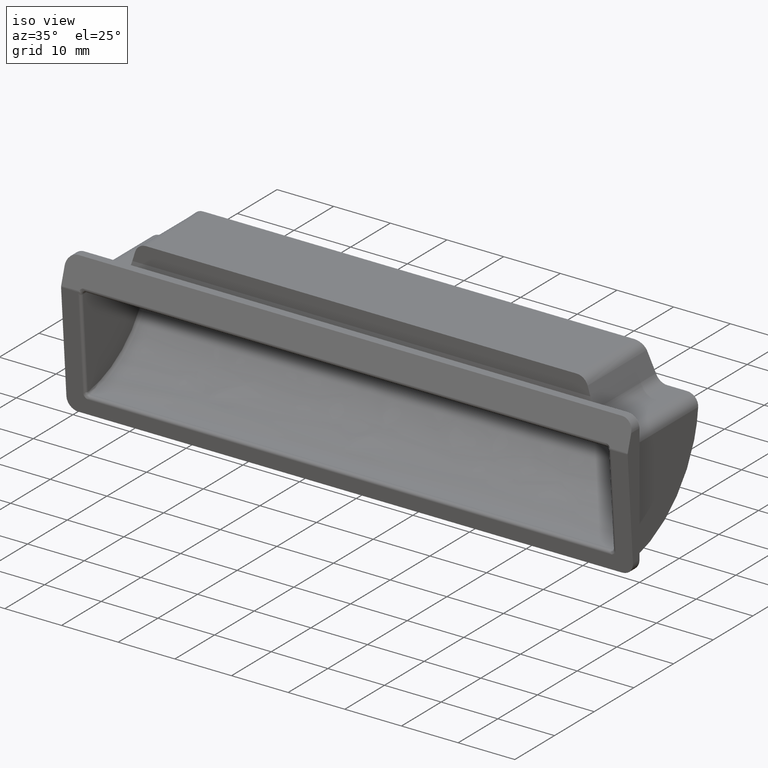
[diagram: clean part render]
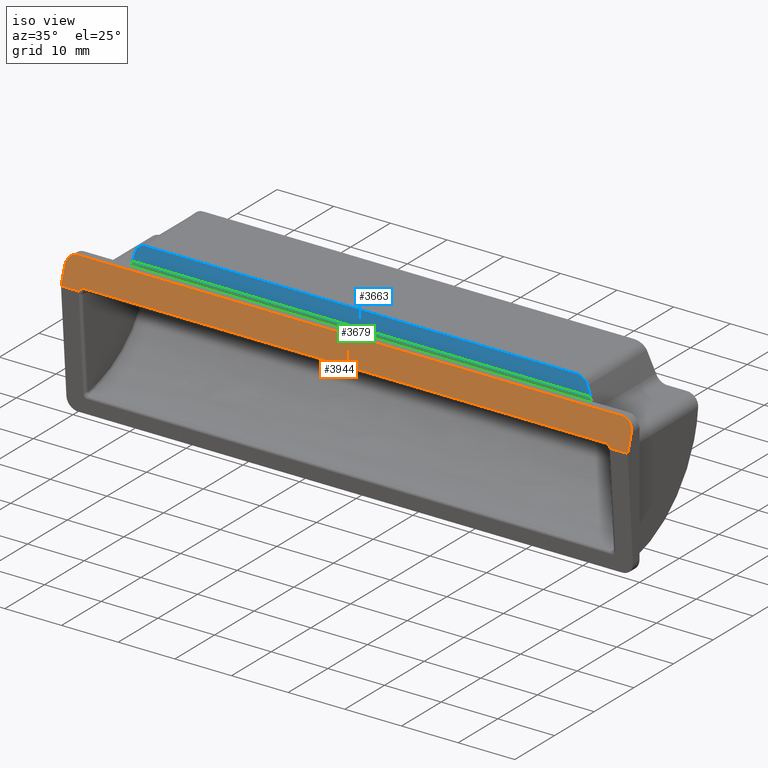
[diagram: same view with three faces highlighted in distinct colors, each labeled with its STEP entity id]
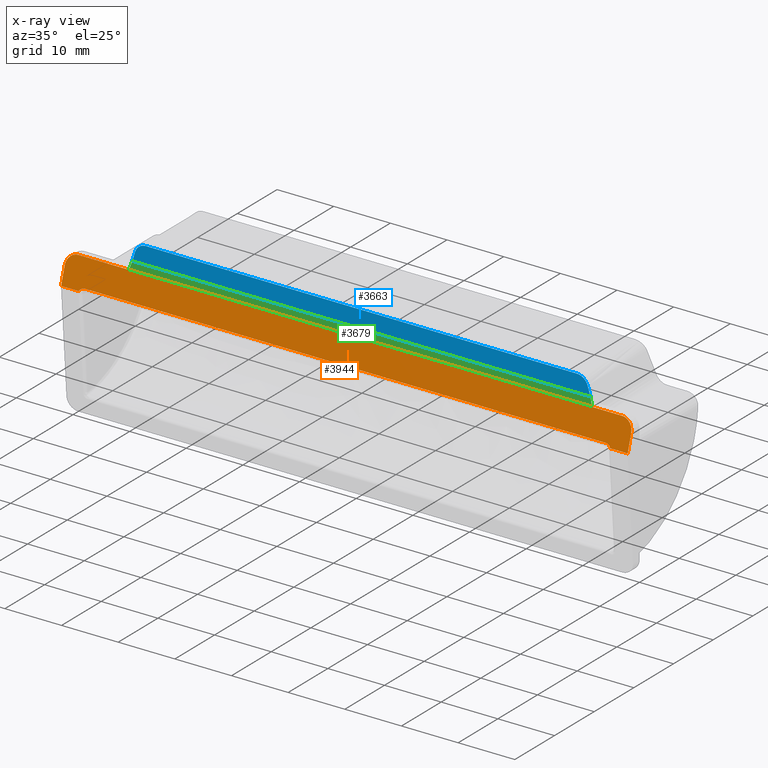
[diagram: x-ray of the same camera — body ghosted, the three highlighted faces saturated]
A machine part, iso view with three faces highlighted in distinct colors.
The next image is the same camera in x-ray (body ghosted, the three faces saturated) — at least one of them is partly hidden behind the body in this view.
Their STEP definitions:

[orange] entity #3944 — the highlighted face is a freeform B-spline surface patch.
#506=CARTESIAN_POINT('',(-46.895512079508300,-2.973386655118745,-7.911288850396230));
#507=VERTEX_POINT('',#506);
#519=CARTESIAN_POINT('',(-50.0,-2.973386655118745,-7.911288850396230));
#520=VERTEX_POINT('',#519);
#521=CARTESIAN_POINT('',(-50.0,-2.973386655118745,-7.911288850396230));
#522=CARTESIAN_POINT('',(-46.895512079508300,-2.973386655118745,-7.911288850396230));
#523=QUASI_UNIFORM_CURVE('',1,(#521,#522),.UNSPECIFIED.,.F.,.U.);
#524=EDGE_CURVE('',#520,#507,#523,.T.);
#572=CARTESIAN_POINT('',(50.0,-2.973386655118745,-7.911288850396230));
#573=VERTEX_POINT('',#572);
#589=CARTESIAN_POINT('',(46.895512079508400,-2.973386655118745,-7.911288850396240));
#590=VERTEX_POINT('',#589);
#591=CARTESIAN_POINT('',(46.895512079508400,-2.973386655118745,-7.911288850396240));
#592=CARTESIAN_POINT('',(50.0,-2.973386655118745,-7.911288850396230));
#593=QUASI_UNIFORM_CURVE('',1,(#591,#592),.UNSPECIFIED.,.F.,.U.);
#594=EDGE_CURVE('',#590,#573,#593,.T.);
#1090=CARTESIAN_POINT('',(46.0,-2.806897817164950,-7.356326057216839));
#1091=VERTEX_POINT('',#1090);
#1092=CARTESIAN_POINT('',(46.0,-2.806897817164948,-7.356326057216850));
#1093=CARTESIAN_POINT('',(46.619715586063570,-2.806897817164948,-7.356326057216850));
#1094=CARTESIAN_POINT('',(46.895512079508400,-2.973386655118745,-7.911288850396240));
#1102=(BOUNDED_CURVE()B_SPLINE_CURVE(2,(#1092,#1093,#1094),.UNSPECIFIED.,.F.,.U.)CURVE()GEOMETRIC_REPRESENTATION_ITEM()QUASI_UNIFORM_CURVE()RATIONAL_B_SPLINE_CURVE((1.0,0.850010943112041,1.0))REPRESENTATION_ITEM(''));
#1103=EDGE_CURVE('',#1091,#590,#1102,.T.);
#1197=CARTESIAN_POINT('',(-46.0,-2.806897817164950,-7.356326057216839));
#1198=VERTEX_POINT('',#1197);
#1222=CARTESIAN_POINT('',(-46.0,-2.806897817164950,-7.356326057216839));
#1223=CARTESIAN_POINT('',(46.0,-2.806897817164950,-7.356326057216839));
#1224=QUASI_UNIFORM_CURVE('',1,(#1222,#1223),.UNSPECIFIED.,.F.,.U.);
#1225=EDGE_CURVE('',#1198,#1091,#1224,.T.);
#1372=CARTESIAN_POINT('',(-46.895512079508300,-2.973386655118736,-7.911288850396215));
#1373=CARTESIAN_POINT('',(-46.619715586063428,-2.806897817164948,-7.356326057216851));
#1374=CARTESIAN_POINT('',(-46.0,-2.806897817164948,-7.356326057216850));
#1382=(BOUNDED_CURVE()B_SPLINE_CURVE(2,(#1372,#1373,#1374),.UNSPECIFIED.,.F.,.U.)CURVE()GEOMETRIC_REPRESENTATION_ITEM()QUASI_UNIFORM_CURVE()RATIONAL_B_SPLINE_CURVE((1.0,0.850010943112098,1.0))REPRESENTATION_ITEM(''));
#1383=EDGE_CURVE('',#507,#1198,#1382,.T.);
#2932=CARTESIAN_POINT('',(-48.0,-1.500000000000000,-3.0));
#2933=VERTEX_POINT('',#2932);
#2934=CARTESIAN_POINT('',(-50.0,-2.100000000000000,-5.0));
#2935=VERTEX_POINT('',#2934);
#2936=CARTESIAN_POINT('',(-48.0,-1.500000000000074,-2.999999999999998));
#2937=CARTESIAN_POINT('',(-49.999999999999993,-1.500000000000074,-2.999999999999997));
#2938=CARTESIAN_POINT('',(-50.0,-2.100000000000000,-5.0));
#2946=(BOUNDED_CURVE()B_SPLINE_CURVE(2,(#2936,#2937,#2938),.UNSPECIFIED.,.F.,.U.)CURVE()GEOMETRIC_REPRESENTATION_ITEM()QUASI_UNIFORM_CURVE()RATIONAL_B_SPLINE_CURVE((1.0,0.707106781186548,1.0))REPRESENTATION_ITEM(''));
#2947=EDGE_CURVE('',#2933,#2935,#2946,.T.);
#2993=CARTESIAN_POINT('',(50.0,-2.100000000000000,-5.0));
#2994=VERTEX_POINT('',#2993);
#2995=CARTESIAN_POINT('',(48.0,-1.500000000000000,-3.0));
#2996=VERTEX_POINT('',#2995);
#2997=CARTESIAN_POINT('',(50.0,-2.100000000000000,-5.0));
#2998=CARTESIAN_POINT('',(49.999999999999993,-1.500000000000074,-2.999999999999998));
#2999=CARTESIAN_POINT('',(48.0,-1.500000000000074,-2.999999999999998));
#3007=(BOUNDED_CURVE()B_SPLINE_CURVE(2,(#2997,#2998,#2999),.UNSPECIFIED.,.F.,.U.)CURVE()GEOMETRIC_REPRESENTATION_ITEM()QUASI_UNIFORM_CURVE()RATIONAL_B_SPLINE_CURVE((1.0,0.707106781186547,1.0))REPRESENTATION_ITEM(''));
#3008=EDGE_CURVE('',#2994,#2996,#3007,.T.);
#3794=CARTESIAN_POINT('',(-50.0,-2.973386655118745,-7.911288850396230));
#3795=CARTESIAN_POINT('',(-50.0,-2.100000000000000,-5.0));
#3796=QUASI_UNIFORM_CURVE('',1,(#3794,#3795),.UNSPECIFIED.,.F.,.U.);
#3797=EDGE_CURVE('',#520,#2935,#3796,.T.);
#3814=CARTESIAN_POINT('',(50.0,-2.973386655118745,-7.911288850396230));
#3815=CARTESIAN_POINT('',(50.0,-2.100000000000000,-5.0));
#3816=QUASI_UNIFORM_CURVE('',1,(#3814,#3815),.UNSPECIFIED.,.F.,.U.);
#3817=EDGE_CURVE('',#573,#2994,#3816,.T.);
#3916=CARTESIAN_POINT('',(48.0,-1.500000000000000,-3.0));
#3917=CARTESIAN_POINT('',(-48.0,-1.500000000000000,-3.0));
#3918=QUASI_UNIFORM_CURVE('',1,(#3916,#3917),.UNSPECIFIED.,.F.,.U.);
#3919=EDGE_CURVE('',#2996,#2933,#3918,.T.);
#3927=CARTESIAN_POINT('',(-54.994999806180587,-1.426404344696554,-2.754681148988295));
#3928=CARTESIAN_POINT('',(-54.994999806180587,-3.046982244556727,-8.156607481856208));
#3929=CARTESIAN_POINT('',(54.995002488389602,-1.426404344696554,-2.754681148988295));
#3930=CARTESIAN_POINT('',(54.995002488389602,-3.046982244556726,-8.156607481856208));
#3931=B_SPLINE_SURFACE_WITH_KNOTS('',1,1,((#3927,#3929),(#3928,#3930)),.UNSPECIFIED.,.F.,.F.,.U.,(2,2),(2,2),(0.0,5.639776665369559),(0.0,109.990002294570200),.UNSPECIFIED.);
#3932=ORIENTED_EDGE('',*,*,#3797,.F.);
#3933=ORIENTED_EDGE('',*,*,#524,.T.);
#3934=ORIENTED_EDGE('',*,*,#1383,.T.);
#3935=ORIENTED_EDGE('',*,*,#1225,.T.);
#3936=ORIENTED_EDGE('',*,*,#1103,.T.);
#3937=ORIENTED_EDGE('',*,*,#594,.T.);
#3938=ORIENTED_EDGE('',*,*,#3817,.T.);
#3939=ORIENTED_EDGE('',*,*,#3008,.T.);
#3940=ORIENTED_EDGE('',*,*,#3919,.T.);
#3941=ORIENTED_EDGE('',*,*,#2947,.T.);
#3942=EDGE_LOOP('',(#3932,#3933,#3934,#3935,#3936,#3937,#3938,#3939,#3940,#3941));
#3943=FACE_OUTER_BOUND('',#3942,.T.);
#3944=ADVANCED_FACE('',(#3943),#3931,.T.);

[blue] entity #3663 — the highlighted face is a freeform B-spline surface patch.
#242=CARTESIAN_POINT('',(-39.934409205446897,1.300000000000096,-1.411828667703620));
#243=VERTEX_POINT('',#242);
#249=CARTESIAN_POINT('',(-38.022851075579148,1.300000000000096,0.0));
#250=VERTEX_POINT('',#249);
#251=CARTESIAN_POINT('',(-38.022851075579148,1.300000000000096,0.0));
#252=CARTESIAN_POINT('',(-39.500000680023568,1.300000000000096,0.0));
#253=CARTESIAN_POINT('',(-39.934409205446897,1.300000000000096,-1.411828667703620));
#261=(BOUNDED_CURVE()B_SPLINE_CURVE(2,(#251,#252,#253),.UNSPECIFIED.,.F.,.U.)CURVE()GEOMETRIC_REPRESENTATION_ITEM()QUASI_UNIFORM_CURVE()RATIONAL_B_SPLINE_CURVE((1.0,0.804389727106281,1.0))REPRESENTATION_ITEM(''));
#262=EDGE_CURVE('',#250,#243,#261,.T.);
#311=CARTESIAN_POINT('',(38.022851075579148,1.300000000000096,0.0));
#312=VERTEX_POINT('',#311);
#318=CARTESIAN_POINT('',(39.934409205447352,1.300000000000096,-1.411828667703452));
#319=VERTEX_POINT('',#318);
#320=CARTESIAN_POINT('',(39.934409205447352,1.300000000000096,-1.411828667703452));
#321=CARTESIAN_POINT('',(39.500000680023490,1.300000000000080,0.0));
#322=CARTESIAN_POINT('',(38.022851075579112,1.300000000000080,0.0));
#330=(BOUNDED_CURVE()B_SPLINE_CURVE(2,(#320,#321,#322),.UNSPECIFIED.,.F.,.U.)CURVE()GEOMETRIC_REPRESENTATION_ITEM()QUASI_UNIFORM_CURVE()RATIONAL_B_SPLINE_CURVE((1.0,0.804389727106283,1.0))REPRESENTATION_ITEM(''));
#331=EDGE_CURVE('',#319,#312,#330,.T.);
#3479=CARTESIAN_POINT('',(40.423076975386650,1.300000000000096,-2.999999999999835));
#3480=VERTEX_POINT('',#3479);
#3481=CARTESIAN_POINT('',(39.934409205447352,1.300000000000096,-1.411828667703452));
#3482=CARTESIAN_POINT('',(40.423076975386650,1.300000000000096,-2.999999999999835));
#3483=QUASI_UNIFORM_CURVE('',1,(#3481,#3482),.UNSPECIFIED.,.F.,.U.);
#3484=EDGE_CURVE('',#319,#3480,#3483,.T.);
#3526=CARTESIAN_POINT('',(-40.423076975386152,1.300000000000096,-2.999999999999835));
#3527=VERTEX_POINT('',#3526);
#3528=CARTESIAN_POINT('',(-40.423076975386152,1.300000000000096,-2.999999999999835));
#3529=CARTESIAN_POINT('',(-39.934409205446897,1.300000000000096,-1.411828667703620));
#3530=QUASI_UNIFORM_CURVE('',1,(#3528,#3529),.UNSPECIFIED.,.F.,.U.);
#3531=EDGE_CURVE('',#3527,#243,#3530,.T.);
#3642=CARTESIAN_POINT('',(-44.461342208531732,1.300000000000096,0.149849994185410));
#3643=CARTESIAN_POINT('',(-44.461342208531732,1.300000000000096,-3.149850074651516));
#3644=CARTESIAN_POINT('',(44.461344376995036,1.300000000000096,0.149849994185410));
#3645=CARTESIAN_POINT('',(44.461344376995036,1.300000000000096,-3.149850074651516));
#3646=B_SPLINE_SURFACE_WITH_KNOTS('',1,1,((#3642,#3644),(#3643,#3645)),.UNSPECIFIED.,.F.,.F.,.U.,(2,2),(2,2),(0.0,3.299700068836926),(0.0,88.922686585526776),.UNSPECIFIED.);
#3647=ORIENTED_EDGE('',*,*,#3484,.F.);
#3648=ORIENTED_EDGE('',*,*,#331,.T.);
#3649=CARTESIAN_POINT('',(38.022851075579148,1.300000000000096,0.0));
#3650=CARTESIAN_POINT('',(-38.022851075579148,1.300000000000096,0.0));
#3651=QUASI_UNIFORM_CURVE('',1,(#3649,#3650),.UNSPECIFIED.,.F.,.U.);
#3652=EDGE_CURVE('',#312,#250,#3651,.T.);
#3653=ORIENTED_EDGE('',*,*,#3652,.T.);
#3654=ORIENTED_EDGE('',*,*,#262,.T.);
#3655=ORIENTED_EDGE('',*,*,#3531,.F.);
#3656=CARTESIAN_POINT('',(40.423076975386650,1.300000000000096,-2.999999999999835));
#3657=CARTESIAN_POINT('',(-40.423076975386152,1.300000000000096,-2.999999999999835));
#3658=QUASI_UNIFORM_CURVE('',1,(#3656,#3657),.UNSPECIFIED.,.F.,.U.);
#3659=EDGE_CURVE('',#3480,#3527,#3658,.T.);
#3660=ORIENTED_EDGE('',*,*,#3659,.F.);
#3661=EDGE_LOOP('',(#3647,#3648,#3653,#3654,#3655,#3660));
#3662=FACE_OUTER_BOUND('',#3661,.T.);
#3663=ADVANCED_FACE('',(#3662),#3646,.T.);

[green] entity #3679 — the highlighted face is a freeform B-spline surface patch.
#3479=CARTESIAN_POINT('',(40.423076975386650,1.300000000000096,-2.999999999999835));
#3480=VERTEX_POINT('',#3479);
#3486=CARTESIAN_POINT('',(41.038461172295200,1.000000000000104,-5.0));
#3487=VERTEX_POINT('',#3486);
#3488=CARTESIAN_POINT('',(40.423076975386650,1.300000000000096,-2.999999999999835));
#3489=CARTESIAN_POINT('',(41.038461172295200,1.000000000000104,-5.0));
#3490=QUASI_UNIFORM_CURVE('',1,(#3488,#3489),.UNSPECIFIED.,.F.,.U.);
#3491=EDGE_CURVE('',#3480,#3487,#3490,.T.);
#3526=CARTESIAN_POINT('',(-40.423076975386152,1.300000000000096,-2.999999999999835));
#3527=VERTEX_POINT('',#3526);
#3555=CARTESIAN_POINT('',(-41.038461172295001,1.000000000000090,-5.0));
#3556=VERTEX_POINT('',#3555);
#3562=CARTESIAN_POINT('',(-41.038461172295001,1.000000000000090,-5.0));
#3563=CARTESIAN_POINT('',(-40.423076975386152,1.300000000000096,-2.999999999999835));
#3564=QUASI_UNIFORM_CURVE('',1,(#3562,#3563),.UNSPECIFIED.,.F.,.U.);
#3565=EDGE_CURVE('',#3556,#3527,#3564,.T.);
#3656=CARTESIAN_POINT('',(40.423076975386650,1.300000000000096,-2.999999999999835));
#3657=CARTESIAN_POINT('',(-40.423076975386152,1.300000000000096,-2.999999999999835));
#3658=QUASI_UNIFORM_CURVE('',1,(#3656,#3657),.UNSPECIFIED.,.F.,.U.);
#3659=EDGE_CURVE('',#3480,#3527,#3658,.T.);
#3664=CARTESIAN_POINT('',(-45.138201450131021,1.314984999418647,-2.900100003876216));
#3665=CARTESIAN_POINT('',(-45.138201450131021,0.985014992534928,-5.099900049767800));
#3666=CARTESIAN_POINT('',(45.138199248656612,1.314984999418647,-2.900100003876216));
#3667=CARTESIAN_POINT('',(45.138199248656612,0.985014992534928,-5.099900049767800));
#3668=B_SPLINE_SURFACE_WITH_KNOTS('',1,1,((#3664,#3666),(#3665,#3667)),.UNSPECIFIED.,.F.,.F.,.U.,(2,2),(2,2),(0.0,2.224410134698064),(0.0,90.276400698787626),.UNSPECIFIED.);
#3669=ORIENTED_EDGE('',*,*,#3491,.F.);
#3670=ORIENTED_EDGE('',*,*,#3659,.T.);
#3671=ORIENTED_EDGE('',*,*,#3565,.F.);
#3672=CARTESIAN_POINT('',(41.038461172295200,1.000000000000104,-5.0));
#3673=CARTESIAN_POINT('',(-41.038461172295001,1.000000000000090,-5.0));
#3674=QUASI_UNIFORM_CURVE('',1,(#3672,#3673),.UNSPECIFIED.,.F.,.U.);
#3675=EDGE_CURVE('',#3487,#3556,#3674,.T.);
#3676=ORIENTED_EDGE('',*,*,#3675,.F.);
#3677=EDGE_LOOP('',(#3669,#3670,#3671,#3676));
#3678=FACE_OUTER_BOUND('',#3677,.T.);
#3679=ADVANCED_FACE('',(#3678),#3668,.T.);